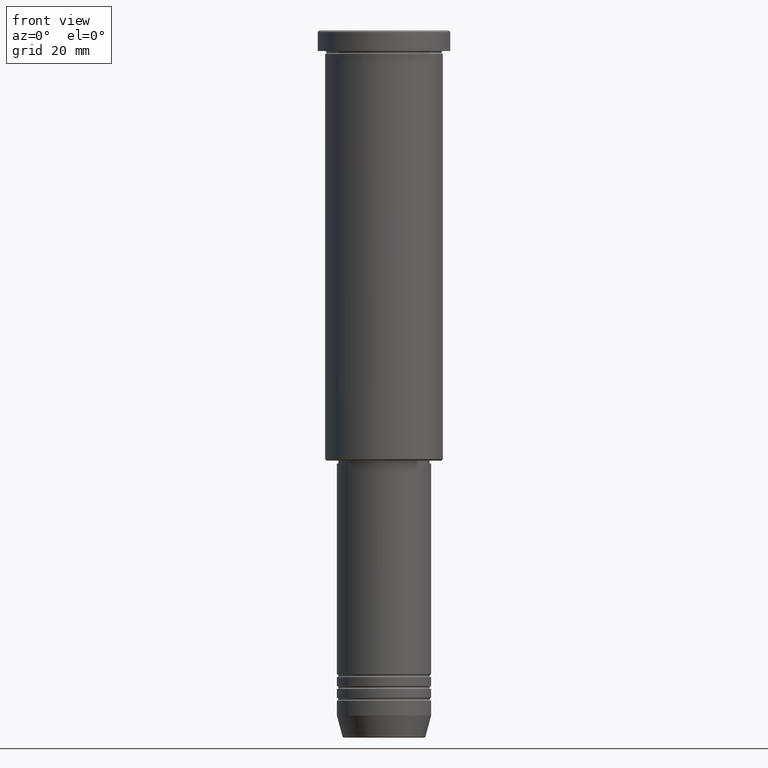
[diagram: clean part render]
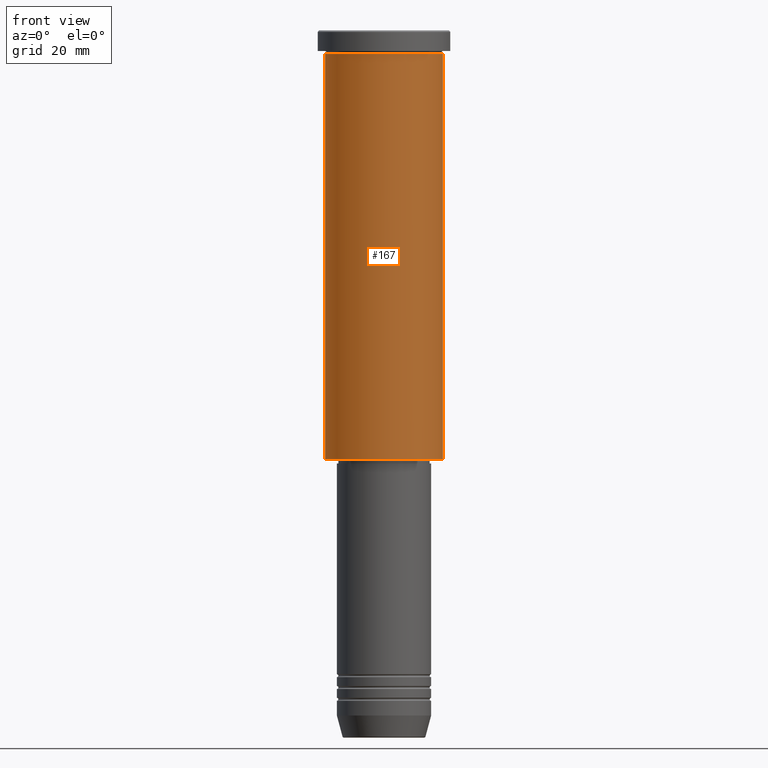
[diagram: same view with one face highlighted and labeled with its STEP entity id]
A machine part, front view. The second image highlights one B-rep face of the part: STEP entity #167.
In plain terms, the highlighted cylindrical surface (partial cylindrical patch) has radius 20 mm, axis along (-0, -0, 1).
Its self-contained STEP definition (entity closure, byte-faithful):
#37 = VERTEX_POINT ( 'NONE', #184 ) ;
#86 = ORIENTED_EDGE ( 'NONE', *, *, #197, .F. ) ;
#87 = FACE_OUTER_BOUND ( 'NONE', #1065, .T. ) ;
#137 = LINE ( 'NONE', #865, #162 ) ;
#148 = CARTESIAN_POINT ( 'NONE',  ( 20.00000000000000355, 0.000000000000000000, -145.5000000000000000 ) ) ;
#149 = DIRECTION ( 'NONE',  ( 1.000000000000000000, 0.000000000000000000, 0.000000000000000000 ) ) ;
#151 = EDGE_CURVE ( 'NONE', #1061, #797, #137, .T. ) ;
#162 = VECTOR ( 'NONE', #1136, 1000.000000000000000 ) ;
#167 = ADVANCED_FACE ( 'NONE', ( #87 ), #948, .T. ) ;
#184 = CARTESIAN_POINT ( 'NONE',  ( -20.00000000000000355, 2.449293598294706907E-15, -145.5000000000000000 ) ) ;
#197 = EDGE_CURVE ( 'NONE', #321, #797, #679, .T. ) ;
#212 = ORIENTED_EDGE ( 'NONE', *, *, #151, .T. ) ;
#252 = DIRECTION ( 'NONE',  ( -0.000000000000000000, -0.000000000000000000, 1.000000000000000000 ) ) ;
#262 = ORIENTED_EDGE ( 'NONE', *, *, #1044, .F. ) ;
#321 = VERTEX_POINT ( 'NONE', #427 ) ;
#355 = LINE ( 'NONE', #1160, #905 ) ;
#427 = CARTESIAN_POINT ( 'NONE',  ( -20.00000000000000000, 2.449293598294706513E-15, -7.999999999999994671 ) ) ;
#441 = EDGE_CURVE ( 'NONE', #37, #1061, #785, .T. ) ;
#460 = CARTESIAN_POINT ( 'NONE',  ( 0.000000000000000000, 0.000000000000000000, -7.999999999999994671 ) ) ;
#472 = ORIENTED_EDGE ( 'NONE', *, *, #441, .T. ) ;
#526 = AXIS2_PLACEMENT_3D ( 'NONE', #460, #608, #1064 ) ;
#530 = DIRECTION ( 'NONE',  ( -0.000000000000000000, -0.000000000000000000, 1.000000000000000000 ) ) ;
#608 = DIRECTION ( 'NONE',  ( -0.000000000000000000, -0.000000000000000000, 1.000000000000000000 ) ) ;
#631 = DIRECTION ( 'NONE',  ( -0.000000000000000000, -0.000000000000000000, 1.000000000000000000 ) ) ;
#679 = CIRCLE ( 'NONE', #526, 20.00000000000000000 ) ;
#783 = CARTESIAN_POINT ( 'NONE',  ( 0.000000000000000000, 0.000000000000000000, -145.5000000000000000 ) ) ;
#785 = CIRCLE ( 'NONE', #1131, 20.00000000000000355 ) ;
#793 = CARTESIAN_POINT ( 'NONE',  ( 0.000000000000000000, 0.000000000000000000, 0.000000000000000000 ) ) ;
#797 = VERTEX_POINT ( 'NONE', #1156 ) ;
#865 = CARTESIAN_POINT ( 'NONE',  ( 20.00000000000000355, 0.000000000000000000, 0.000000000000000000 ) ) ;
#896 = DIRECTION ( 'NONE',  ( -1.000000000000000000, 0.000000000000000000, 0.000000000000000000 ) ) ;
#905 = VECTOR ( 'NONE', #252, 1000.000000000000000 ) ;
#948 = CYLINDRICAL_SURFACE ( 'NONE', #1055, 20.00000000000000355 ) ;
#1044 = EDGE_CURVE ( 'NONE', #37, #321, #355, .T. ) ;
#1055 = AXIS2_PLACEMENT_3D ( 'NONE', #793, #631, #149 ) ;
#1061 = VERTEX_POINT ( 'NONE', #148 ) ;
#1064 = DIRECTION ( 'NONE',  ( 1.000000000000000000, 0.000000000000000000, 0.000000000000000000 ) ) ;
#1065 = EDGE_LOOP ( 'NONE', ( #262, #472, #212, #86 ) ) ;
#1131 = AXIS2_PLACEMENT_3D ( 'NONE', #783, #530, #896 ) ;
#1136 = DIRECTION ( 'NONE',  ( -0.000000000000000000, -0.000000000000000000, 1.000000000000000000 ) ) ;
#1156 = CARTESIAN_POINT ( 'NONE',  ( 20.00000000000000000, 0.000000000000000000, -7.999999999999994671 ) ) ;
#1160 = CARTESIAN_POINT ( 'NONE',  ( -20.00000000000000355, 2.449293598294706907E-15, 0.000000000000000000 ) ) ;